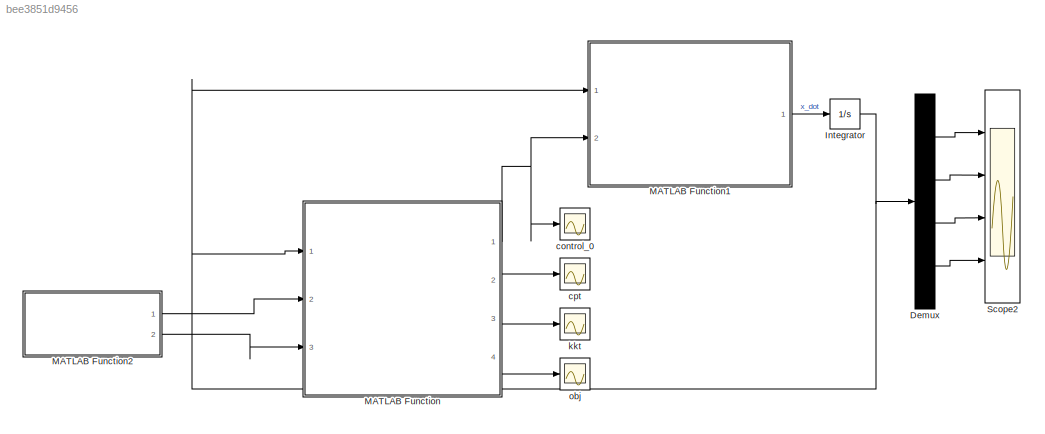
MODEL slx_bee3851d9456
KIND model
CONFIG AbsTol = auto
CONFIG EnableMultiTasking = off
CONFIG FixedStep = auto
CONFIG MaxStep = auto
CONFIG MinStep = auto
CONFIG RelTol = 1e-3
CONFIG SampleTimeConstraint = Unconstrained
CONFIG Solver = FixedStepAuto
CONFIG SolverName = FixedStepAuto
CONFIG StartTime = 0.0
CONFIG StopTime = 4.0
BLOCK [Demux] Demux
  DisplayOption = bar
  Ports = [1, 4]
BLOCK [Integrator] Integrator
  InitialCondition = x0
  Ports = [1, 1]
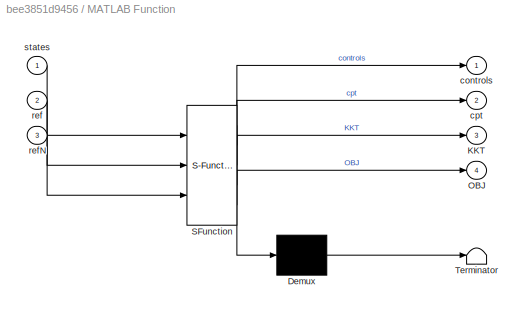
BLOCK [SubSystem] MATLAB Function
  ErrorFcn = Stateflow.Translate.translate
  PermitHierarchicalResolution = ExplicitOnly
  Ports = [3, 4]
  RequestExecContextInheritance = off
  SFBlockType = MATLAB Function
  SystemSampleTime = Ts
  TreatAsAtomicUnit = on
BLOCK [Demux] MATLAB Function/ Demux 
  Outputs = 1
  Ports = [1, 1]
BLOCK [S-Function] MATLAB Function/ SFunction 
  EnableBusSupport = on
  FunctionName = sf_sfun
  Parameters = W,WN,lb,lbu,lbx,opt,para,settings,ub,ubu,ubx
  PortCounts = [3 5]
  Ports = [3, 5]
  SFcnIsStateOwnerBlock = off
  SFunctionDeploymentMode = off
  Tag = Stateflow S-Function MATMPC_SIMULINK_R2017b 2
BLOCK [Terminator] MATLAB Function/ Terminator 
BLOCK [Outport] MATLAB Function/KKT
  IconDisplay = Port number
  Port = 3
BLOCK [Outport] MATLAB Function/OBJ
  IconDisplay = Port number
  Port = 4
BLOCK [Outport] MATLAB Function/controls
  IconDisplay = Port number
BLOCK [Outport] MATLAB Function/cpt
  IconDisplay = Port number
  Port = 2
BLOCK [Inport] MATLAB Function/ref
  IconDisplay = Port number
  Port = 2
BLOCK [Inport] MATLAB Function/refN
  IconDisplay = Port number
  Port = 3
BLOCK [Inport] MATLAB Function/states
  IconDisplay = Port number
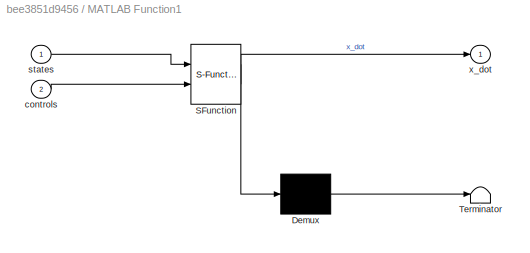
BLOCK [SubSystem] MATLAB Function1
  ErrorFcn = Stateflow.Translate.translate
  PermitHierarchicalResolution = ExplicitOnly
  Ports = [2, 1]
  RequestExecContextInheritance = off
  SFBlockType = MATLAB Function
  TreatAsAtomicUnit = on
BLOCK [Demux] MATLAB Function1/ Demux 
  Outputs = 1
  Ports = [1, 1]
BLOCK [S-Function] MATLAB Function1/ SFunction 
  EnableBusSupport = on
  FunctionName = sf_sfun
  PortCounts = [2 2]
  Ports = [2, 2]
  SFcnIsStateOwnerBlock = off
  SFunctionDeploymentMode = off
  Tag = Stateflow S-Function MATMPC_SIMULINK_R2017b 1
BLOCK [Terminator] MATLAB Function1/ Terminator 
BLOCK [Inport] MATLAB Function1/controls
  IconDisplay = Port number
  Port = 2
BLOCK [Inport] MATLAB Function1/states
  IconDisplay = Port number
BLOCK [Outport] MATLAB Function1/x_dot
  IconDisplay = Port number
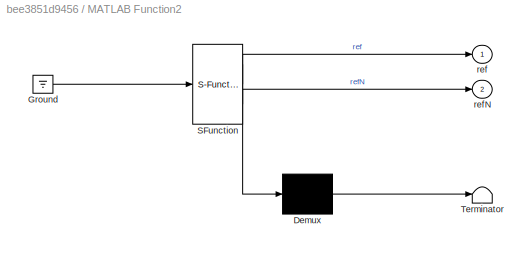
BLOCK [SubSystem] MATLAB Function2
  ErrorFcn = Stateflow.Translate.translate
  PermitHierarchicalResolution = ExplicitOnly
  Ports = [0, 2]
  RequestExecContextInheritance = off
  SFBlockType = MATLAB Function
  TreatAsAtomicUnit = on
BLOCK [Demux] MATLAB Function2/ Demux 
  Outputs = 1
  Ports = [1, 1]
BLOCK [Ground] MATLAB Function2/ Ground 
BLOCK [S-Function] MATLAB Function2/ SFunction 
  EnableBusSupport = on
  FunctionName = sf_sfun
  Parameters = settings
  PortCounts = [1 3]
  Ports = [1, 3]
  SFcnIsStateOwnerBlock = off
  SFunctionDeploymentMode = off
  Tag = Stateflow S-Function MATMPC_SIMULINK_R2017b 3
BLOCK [Terminator] MATLAB Function2/ Terminator 
BLOCK [Outport] MATLAB Function2/ref
  IconDisplay = Port number
BLOCK [Outport] MATLAB Function2/refN
  IconDisplay = Port number
  Port = 2
BLOCK [Scope] Scope2
  Floating = off
  NumInputPorts = 4
  Ports = [4]
  ScopeSpecificationString = Simulink.scopes.TimeScopeBlockCfg('CurrentConfiguration', extmgr.ConfigurationSet(extmgr.Configuration('Core','General UI',true),extmgr.Configuration('Core','Source UI',true),extmgr.Configuration('Sources','WiredSimulink',true,'DataLoggingVariableName','ScopeData2'),extmgr.Configuration('Visuals','Time Domain',true,'SerializedDisplays',{struct('MinYLimReal','-0.46997','MaxYLimReal','1.48777','YLab...<+3389ch>
BLOCK [Scope] control_0
  Floating = off
  NumInputPorts = 1
  Ports = [1]
  ScopeSpecificationString = Simulink.scopes.TimeScopeBlockCfg('CurrentConfiguration', extmgr.ConfigurationSet(extmgr.Configuration('Core','General UI',true),extmgr.Configuration('Core','Source UI',true),extmgr.Configuration('Sources','WiredSimulink',true,'DataLoggingVariableName','ScopeData1'),extmgr.Configuration('Visuals','Time Domain',true,'SerializedDisplays',{struct('MinYLimReal','-25.00000','MaxYLimReal','25.00000','YL...<+1427ch>
BLOCK [Scope] cpt
  Floating = off
  NumInputPorts = 1
  Ports = [1]
  ScopeSpecificationString = Simulink.scopes.TimeScopeBlockCfg('CurrentConfiguration', extmgr.ConfigurationSet(extmgr.Configuration('Core','General UI',true),extmgr.Configuration('Core','Source UI',true),extmgr.Configuration('Sources','WiredSimulink',true,'DataLoggingVariableName','ScopeData1'),extmgr.Configuration('Visuals','Time Domain',true,'SerializedDisplays',{struct('MinYLimReal','0.9967','MaxYLimReal','19.16122','YLabe...<+1419ch>
BLOCK [Scope] kkt
  Floating = off
  NumInputPorts = 1
  Ports = [1]
  ScopeSpecificationString = Simulink.scopes.TimeScopeBlockCfg('CurrentConfiguration', extmgr.ConfigurationSet(extmgr.Configuration('Core','General UI',true),extmgr.Configuration('Core','Source UI',true),extmgr.Configuration('Sources','WiredSimulink',true,'DataLoggingVariableName','ScopeData1'),extmgr.Configuration('Visuals','Time Domain',true,'SerializedDisplays',{struct('MinYLimReal','-26.10025','MaxYLimReal','234.90912','Y...<+1403ch>
BLOCK [Scope] obj
  Floating = off
  NumInputPorts = 1
  Ports = [1]
  ScopeSpecificationString = Simulink.scopes.TimeScopeBlockCfg('CurrentConfiguration', extmgr.ConfigurationSet(extmgr.Configuration('Core','General UI',true),extmgr.Configuration('Core','Source UI',true),extmgr.Configuration('Sources','WiredSimulink',true,'DataLoggingVariableName','ScopeData2'),extmgr.Configuration('Visuals','Time Domain',true,'SerializedDisplays',{struct('MinYLimReal','-430.93352','MaxYLimReal','3878.40372',...<+1441ch>
LINE Demux:1 -> Scope2:1
LINE Demux:2 -> Scope2:2
LINE Demux:3 -> Scope2:3
LINE Demux:4 -> Scope2:4
NET Integrator:1 -> Demux:1, MATLAB Function1:1, MATLAB Function:1
LINE MATLAB Function1:1 -> Integrator:1
LINE MATLAB Function2:1 -> MATLAB Function:2
LINE MATLAB Function2:2 -> MATLAB Function:3
NET MATLAB Function:1 -> MATLAB Function1:2, control_0:1
LINE MATLAB Function:2 -> cpt:1
LINE MATLAB Function:3 -> kkt:1
LINE MATLAB Function:4 -> obj:1
note: NET lines group one-source signal fan-out (src -> all destinations, sorted); 1:1 wires keep LINE
CHART MATLAB Function1 states=1 transitions=1
  STATE_LABEL 'eML_blk_kernel()'
  STATE_LABEL 'SCRIPT:\nfunction x_dot  = Dynamic_System(states,controls)\n\nM = 1; \nm = 0.1;\nl = 0.8; \ng = 9.81;\n\np=states(1);\ntheta=states(2);\nv=states(3);\nomega=states(4);  \nu=controls(1);\n\na=-m*l*sin(theta)*omega^2+m*g*cos(theta)*sin(theta)+u;\nb=-m*l*cos(theta)*sin(theta)*omega^2+u*cos(theta)+(M+m)*g*sin(theta);\nc=M+m-m*(cos(theta))^2;\n\nx_dot = [v;omega;a/c;b/(l*c)];\n\nreturn\n'
CHART MATLAB Function states=1 transitions=1
  STATE_LABEL 'eML_blk_kernel()'
  STATE_LABEL "SCRIPT:\nfunction [controls, cpt, KKT, OBJ] = NMPC_BLOCK(states, settings, opt, lb, ub, lbx, ubx, lbu, ubu, W, WN, para, ref, refN)\n\n%% everything should has a fixed size\ncoder.extrinsic('mpc_nmpcsolver_simulink');  \ncoder.extrinsic('InitData');  \ncoder.extrinsic('InitMemory');  \ncoder.extrinsic('evalin');\ncoder.extrinsic('assignin');\n\n%%\n\npersistent x u lambda mu mu_x mu_u;\npersistent input mem;\n\n...<+2540ch>"
CHART MATLAB Function2 states=1 transitions=1
  STATE_LABEL 'eML_blk_kernel()'
  STATE_LABEL 'SCRIPT:\nfunction [ref,refN] = Ref_Generator(  settings)\n\nref=zeros(settings.ny,settings.N);\nrefN=zeros(settings.nyN,1);\n'
